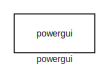
[diagram: root canvas - part 1/2, top left region]
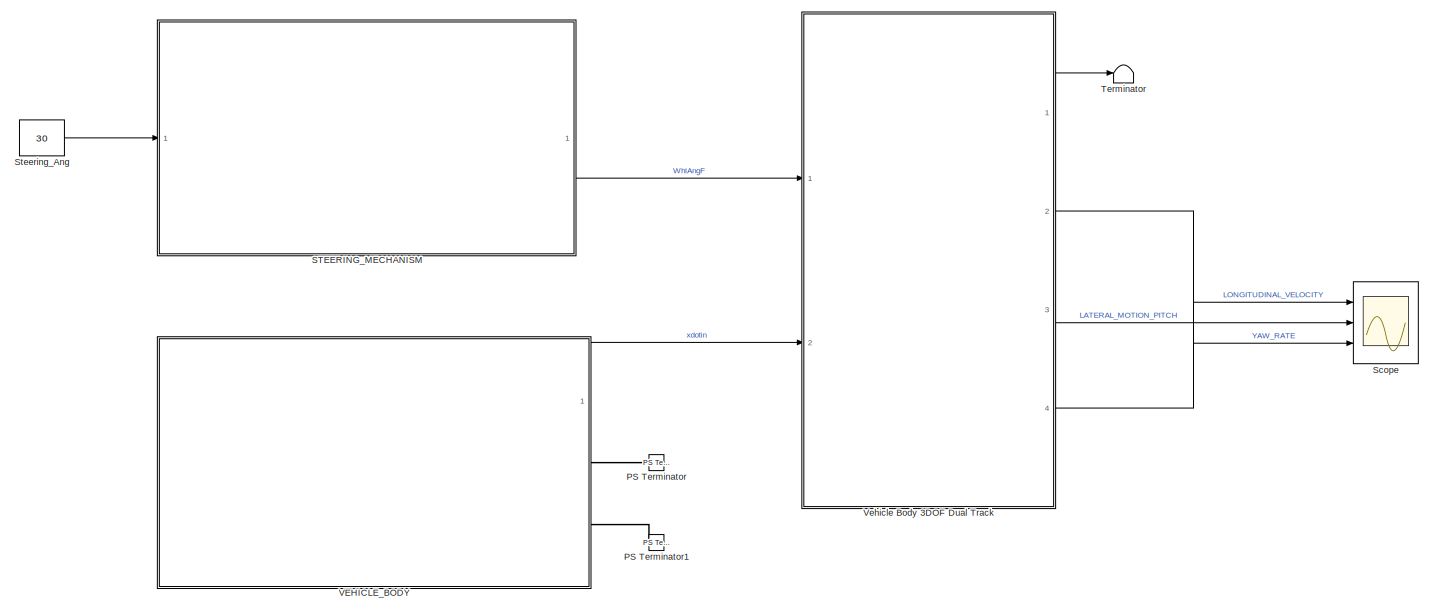
[diagram: root canvas - part 2/2, most of the canvas]
MODEL slx_8d7870adc78c
KIND model
CONFIG AbsTol = auto
CONFIG EnableMultiTasking = off
CONFIG FixedStep = 0.01
CONFIG MaxStep = auto
CONFIG MinStep = auto
CONFIG RelTol = auto
CONFIG SampleTimeConstraint = Unconstrained
CONFIG Solver = FixedStepAuto
CONFIG SolverName = FixedStepAuto
CONFIG StartTime = 0.0
CONFIG StopTime = 200
BLOCK [Reference] PS Terminator  REF=fl_lib/Physical Signals/Sinks/PS Terminator
  Ports = [0, 0, 0, 0, 0, 1]
  SourceBlock = fl_lib/Physical Signals/Sinks/PS Terminator
  SourceProductBaseCode = SS
  SourceProductName = Simscape
  SourceType = PS Terminator
BLOCK [Reference] PS Terminator1  REF=fl_lib/Physical Signals/Sinks/PS Terminator
  Ports = [0, 0, 0, 0, 0, 1]
  SourceBlock = fl_lib/Physical Signals/Sinks/PS Terminator
  SourceProductBaseCode = SS
  SourceProductName = Simscape
  SourceType = PS Terminator
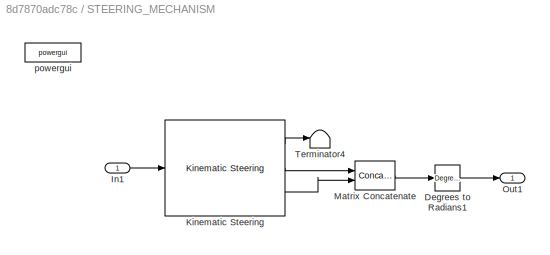
BLOCK [SubSystem] STEERING_MECHANISM
  Ports = [1, 1]
  RequestExecContextInheritance = off
BLOCK [Reference] STEERING_MECHANISM/Degrees to Radians1  REF=simulink_extras/Transformations/Degrees to
Radians
  Ports = [1, 1]
  SourceBlock = simulink_extras/Transformations/Degrees to\nRadians
  SourceProductBaseCode = SL
  SourceProductName = Simulink
  SourceType = DegreesToRadians
BLOCK [Inport] STEERING_MECHANISM/In1
  IconDisplay = Port number
BLOCK [Reference] STEERING_MECHANISM/Kinematic Steering  REF=vehdynlibsteering/Kinematic Steering
  Ports = [1, 3]
  SourceBlock = vehdynlibsteering/Kinematic Steering
  SourceProductBaseCode = VE
  SourceProductName = Vehicle Dynamics Blockset
  SourceType = Kinematic Steering
BLOCK [Concatenate] STEERING_MECHANISM/Matrix Concatenate
  AttributesFormatString = %<1>
  ConcatenateDimension = 2
  Ports = [2, 1]
BLOCK [Outport] STEERING_MECHANISM/Out1
  IconDisplay = Port number
BLOCK [Terminator] STEERING_MECHANISM/Terminator4
BLOCK [Reference] STEERING_MECHANISM/powergui  REF=powerlib/powergui
  Ports = []
  Priority = 1
  SourceBlock = powerlib/powergui
  SourceProductBaseCode = PS
  SourceProductName = Simscape Electrical
  SourceType = PSB option menu block
BLOCK [Scope] Scope
  Floating = off
  NumInputPorts = 3
  Ports = [3]
  ScopeSpecificationString = Simulink.scopes.TimeScopeBlockCfg('CurrentConfiguration', extmgr.ConfigurationSet(extmgr.Configuration('Core','General UI',true),extmgr.Configuration('Core','Source UI',true),extmgr.Configuration('Sources','WiredSimulink',true),extmgr.Configuration('Visuals','Time Domain',true,'SerializedDisplays',{struct('MinYLimReal','-4.21698','MaxYLimReal','37.95284','YLabelReal','','MinYLimMag','0.00000','Max...<+3047ch>
BLOCK [Constant] Steering_Ang
  Value = 30
BLOCK [Terminator] Terminator
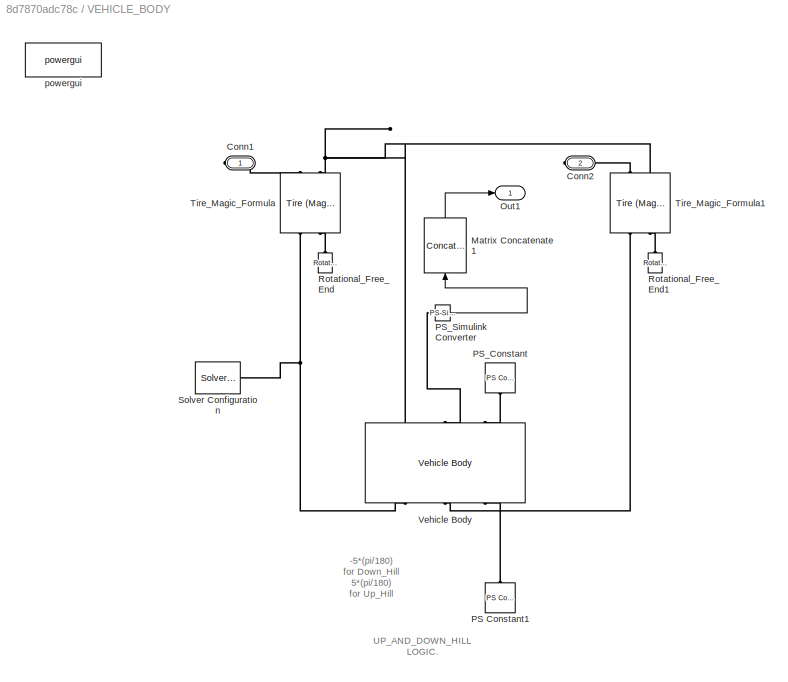
BLOCK [SubSystem] VEHICLE_BODY
  Ports = [0, 1, 0, 0, 0, 0, 2]
  RequestExecContextInheritance = off
BLOCK [PMIOPort] VEHICLE_BODY/Conn1
  Side = Right
BLOCK [PMIOPort] VEHICLE_BODY/Conn2
  Port = 2
  Side = Right
BLOCK [Concatenate] VEHICLE_BODY/Matrix Concatenate1
  AttributesFormatString = %<1>
  ConcatenateDimension = 2
  NumInputs = 1
  Ports = [1, 1]
BLOCK [Outport] VEHICLE_BODY/Out1
  IconDisplay = Port number
BLOCK [Reference] VEHICLE_BODY/PS Constant1  REF=fl_lib/Physical Signals/Sources/PS Constant
  Ports = [0, 0, 0, 0, 0, 0, 1]
  SourceBlock = fl_lib/Physical Signals/Sources/PS Constant
  SourceProductBaseCode = SS
  SourceProductName = Simscape
  SourceType = PS Constant
BLOCK [Reference] VEHICLE_BODY/PS_Constant  REF=fl_lib/Physical Signals/Sources/PS Constant
  Ports = [0, 0, 0, 0, 0, 0, 1]
  SourceBlock = fl_lib/Physical Signals/Sources/PS Constant
  SourceProductBaseCode = SS
  SourceProductName = Simscape
  SourceType = PS Constant
BLOCK [Reference] VEHICLE_BODY/PS_Simulink Converter  REF=nesl_utility/PS-Simulink
Converter
  Ports = [0, 1, 0, 0, 0, 1]
  SourceBlock = nesl_utility/PS-Simulink\nConverter
  SourceProductBaseCode = SS
  SourceProductName = Simscape
  SourceType = PS-Simulink\nConverter
BLOCK [Reference] VEHICLE_BODY/Rotational_Free_End  REF=fl_lib/Mechanical/Rotational Elements/Rotational Free End
  Ports = [0, 0, 0, 0, 0, 1]
  SourceBlock = fl_lib/Mechanical/Rotational Elements/Rotational Free End
  SourceProductBaseCode = SS
  SourceProductName = Simscape
  SourceType = Rotational Free End
BLOCK [Reference] VEHICLE_BODY/Rotational_Free_End1  REF=fl_lib/Mechanical/Rotational Elements/Rotational Free End
  Ports = [0, 0, 0, 0, 0, 1]
  SourceBlock = fl_lib/Mechanical/Rotational Elements/Rotational Free End
  SourceProductBaseCode = SS
  SourceProductName = Simscape
  SourceType = Rotational Free End
BLOCK [Reference] VEHICLE_BODY/Solver Configuration  REF=nesl_utility/Solver
Configuration
  Ports = [0, 0, 0, 0, 0, 0, 1]
  SourceBlock = nesl_utility/Solver\nConfiguration
  SourceProductBaseCode = SS
  SourceProductName = Simscape
  SourceType = Solver\nConfiguration
BLOCK [Reference] VEHICLE_BODY/Tire_Magic_Formula  REF=sdl_lib/Tires & Vehicles/Tire (Magic Formula)
  Ports = [0, 0, 0, 0, 0, 2, 2]
  SourceBlock = sdl_lib/Tires & Vehicles/Tire (Magic Formula)
  SourceProductBaseCode = LD
  SourceProductName = Simscape Driveline
  SourceType = Tire (Magic Formula)
BLOCK [Reference] VEHICLE_BODY/Tire_Magic_Formula1  REF=sdl_lib/Tires & Vehicles/Tire (Magic Formula)
  Ports = [0, 0, 0, 0, 0, 2, 2]
  SourceBlock = sdl_lib/Tires & Vehicles/Tire (Magic Formula)
  SourceProductBaseCode = LD
  SourceProductName = Simscape Driveline
  SourceType = Tire (Magic Formula)
BLOCK [Reference] VEHICLE_BODY/Vehicle Body  REF=sdl_lib/Tires & Vehicles/Vehicle Body
  Ports = [0, 0, 0, 0, 0, 3, 3]
  SourceBlock = sdl_lib/Tires & Vehicles/Vehicle Body
  SourceProductBaseCode = LD
  SourceProductName = Simscape Driveline
  SourceType = Vehicle Body
BLOCK [Reference] VEHICLE_BODY/powergui  REF=powerlib/powergui
  Ports = []
  Priority = 1
  SourceBlock = powerlib/powergui
  SourceProductBaseCode = PS
  SourceProductName = Simscape Electrical
  SourceType = PSB option menu block
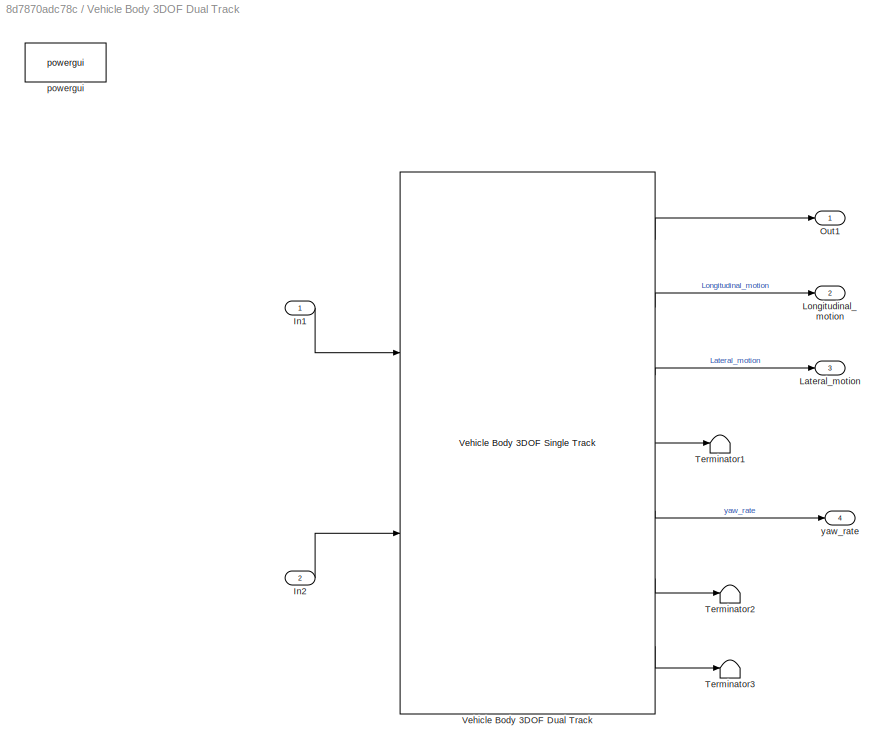
BLOCK [SubSystem] Vehicle Body 3DOF Dual Track
  Ports = [2, 4]
  RequestExecContextInheritance = off
BLOCK [Inport] Vehicle Body 3DOF Dual Track/In1
  IconDisplay = Port number
BLOCK [Inport] Vehicle Body 3DOF Dual Track/In2
  IconDisplay = Port number
  Port = 2
BLOCK [Outport] Vehicle Body 3DOF Dual Track/Lateral_motion
  IconDisplay = Port number
  Port = 3
BLOCK [Outport] Vehicle Body 3DOF Dual Track/Longitudinal_motion
  IconDisplay = Port number
  Port = 2
BLOCK [Outport] Vehicle Body 3DOF Dual Track/Out1
  IconDisplay = Port number
BLOCK [Terminator] Vehicle Body 3DOF Dual Track/Terminator1
BLOCK [Terminator] Vehicle Body 3DOF Dual Track/Terminator2
BLOCK [Terminator] Vehicle Body 3DOF Dual Track/Terminator3
BLOCK [Reference] Vehicle Body 3DOF Dual Track/Vehicle Body 3DOF Dual Track  REF=autolibshared/Vehicle Body 3DOF Single Track
  Ports = [2, 7]
  SourceBlock = autolibshared/Vehicle Body 3DOF Single Track
  SourceProductBaseCode = PW
  SourceProductName = Powertrain Blockset
  SourceType = Vehicle Body 3DOF Lateral
BLOCK [Reference] Vehicle Body 3DOF Dual Track/powergui  REF=powerlib/powergui
  Ports = []
  Priority = 1
  SourceBlock = powerlib/powergui
  SourceProductBaseCode = PS
  SourceProductName = Simscape Electrical
  SourceType = PSB option menu block
BLOCK [Outport] Vehicle Body 3DOF Dual Track/yaw_rate
  IconDisplay = Port number
  Port = 4
BLOCK [Reference] powergui  REF=powerlib/powergui
  Ports = []
  Priority = 1
  SourceBlock = powerlib/powergui
  SourceProductBaseCode = PS
  SourceProductName = Simscape Electrical
  SourceType = PSB option menu block
ANNOTATION VEHICLE_BODY: UP_AND_DOWN_HILL LOGIC.
ANNOTATION VEHICLE_BODY: -5*(pi/180) for Down_Hill 5*(pi/180) for Up_Hill
LINE STEERING_MECHANISM/Degrees to Radians1:1 -> STEERING_MECHANISM/Out1:1
LINE STEERING_MECHANISM/In1:1 -> STEERING_MECHANISM/Kinematic Steering:1
LINE STEERING_MECHANISM/Kinematic Steering:1 -> STEERING_MECHANISM/Terminator4:1
LINE STEERING_MECHANISM/Kinematic Steering:2 -> STEERING_MECHANISM/Matrix Concatenate:1
LINE STEERING_MECHANISM/Kinematic Steering:3 -> STEERING_MECHANISM/Matrix Concatenate:2
LINE STEERING_MECHANISM/Matrix Concatenate:1 -> STEERING_MECHANISM/Degrees to Radians1:1
LINE STEERING_MECHANISM:1 -> Vehicle Body 3DOF Dual Track:1
LINE Steering_Ang:1 -> STEERING_MECHANISM:1
LINE VEHICLE_BODY/Matrix Concatenate1:1 -> VEHICLE_BODY/Out1:1
LINE VEHICLE_BODY/PS_Simulink Converter:1 -> VEHICLE_BODY/Matrix Concatenate1:1
LINE VEHICLE_BODY:1 -> Vehicle Body 3DOF Dual Track:2
LINE Vehicle Body 3DOF Dual Track/In1:1 -> Vehicle Body 3DOF Dual Track/Vehicle Body 3DOF Dual Track:1
LINE Vehicle Body 3DOF Dual Track/In2:1 -> Vehicle Body 3DOF Dual Track/Vehicle Body 3DOF Dual Track:2
LINE Vehicle Body 3DOF Dual Track/Vehicle Body 3DOF Dual Track:1 -> Vehicle Body 3DOF Dual Track/Out1:1
LINE Vehicle Body 3DOF Dual Track/Vehicle Body 3DOF Dual Track:2 -> Vehicle Body 3DOF Dual Track/Longitudinal_motion:1
LINE Vehicle Body 3DOF Dual Track/Vehicle Body 3DOF Dual Track:3 -> Vehicle Body 3DOF Dual Track/Lateral_motion:1
LINE Vehicle Body 3DOF Dual Track/Vehicle Body 3DOF Dual Track:4 -> Vehicle Body 3DOF Dual Track/Terminator1:1
LINE Vehicle Body 3DOF Dual Track/Vehicle Body 3DOF Dual Track:5 -> Vehicle Body 3DOF Dual Track/yaw_rate:1
LINE Vehicle Body 3DOF Dual Track/Vehicle Body 3DOF Dual Track:6 -> Vehicle Body 3DOF Dual Track/Terminator2:1
LINE Vehicle Body 3DOF Dual Track/Vehicle Body 3DOF Dual Track:7 -> Vehicle Body 3DOF Dual Track/Terminator3:1
LINE Vehicle Body 3DOF Dual Track:1 -> Terminator:1
LINE Vehicle Body 3DOF Dual Track:2 -> Scope:1
LINE Vehicle Body 3DOF Dual Track:3 -> Scope:2
LINE Vehicle Body 3DOF Dual Track:4 -> Scope:3
PLINE PS Terminator1:LConn1 -- VEHICLE_BODY:RConn2
PLINE PS Terminator:LConn1 -- VEHICLE_BODY:RConn1
PLINE VEHICLE_BODY/Conn1:RConn1 -- VEHICLE_BODY/Tire_Magic_Formula:RConn1
PLINE VEHICLE_BODY/Conn2:RConn1 -- VEHICLE_BODY/Tire_Magic_Formula1:RConn1
PLINE VEHICLE_BODY/PS Constant1:RConn1 -- VEHICLE_BODY/Vehicle Body:RConn3
PLINE VEHICLE_BODY/PS_Constant:RConn1 -- VEHICLE_BODY/Vehicle Body:LConn3
PLINE VEHICLE_BODY/PS_Simulink Converter:LConn1 -- VEHICLE_BODY/Vehicle Body:LConn2
PLINE VEHICLE_BODY/Rotational_Free_End1:LConn1 -- VEHICLE_BODY/Tire_Magic_Formula1:LConn2
PLINE VEHICLE_BODY/Rotational_Free_End:LConn1 -- VEHICLE_BODY/Tire_Magic_Formula:LConn2
PNET net1: VEHICLE_BODY/Solver Configuration:RConn1 -- VEHICLE_BODY/Tire_Magic_Formula:LConn1 -- VEHICLE_BODY/Vehicle Body:RConn1
PLINE VEHICLE_BODY/Tire_Magic_Formula1:LConn1 -- VEHICLE_BODY/Vehicle Body:RConn2
PNET net2: VEHICLE_BODY/Tire_Magic_Formula1:RConn2 -- VEHICLE_BODY/Tire_Magic_Formula:RConn2 -- VEHICLE_BODY/Vehicle Body:LConn1
note: PNET lines group multi-terminal physical nets as a canonical sorted terminal list (undirected conserving connections); 2-terminal nets keep the pairwise PLINE form
